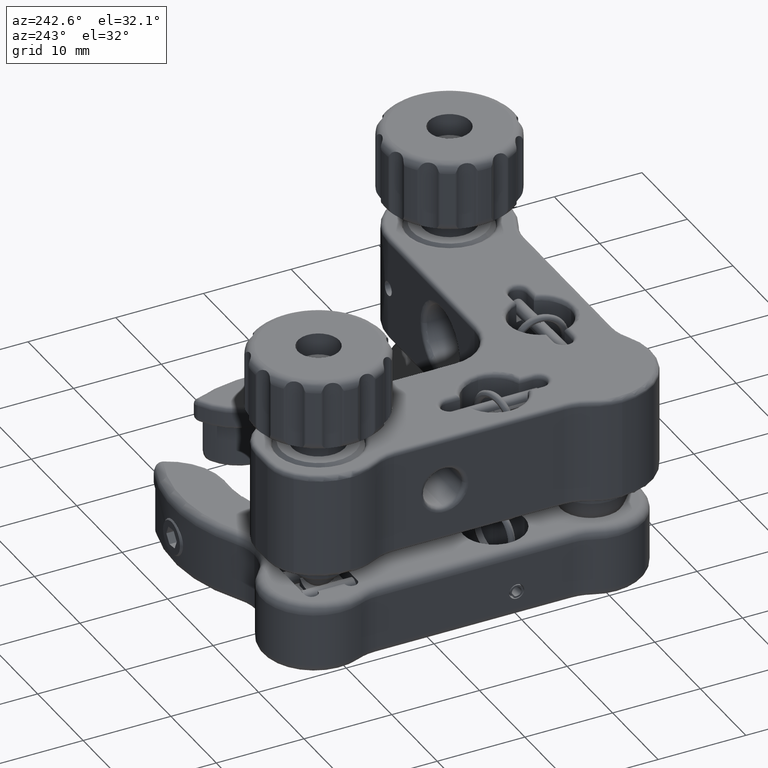
[diagram: clean part render]
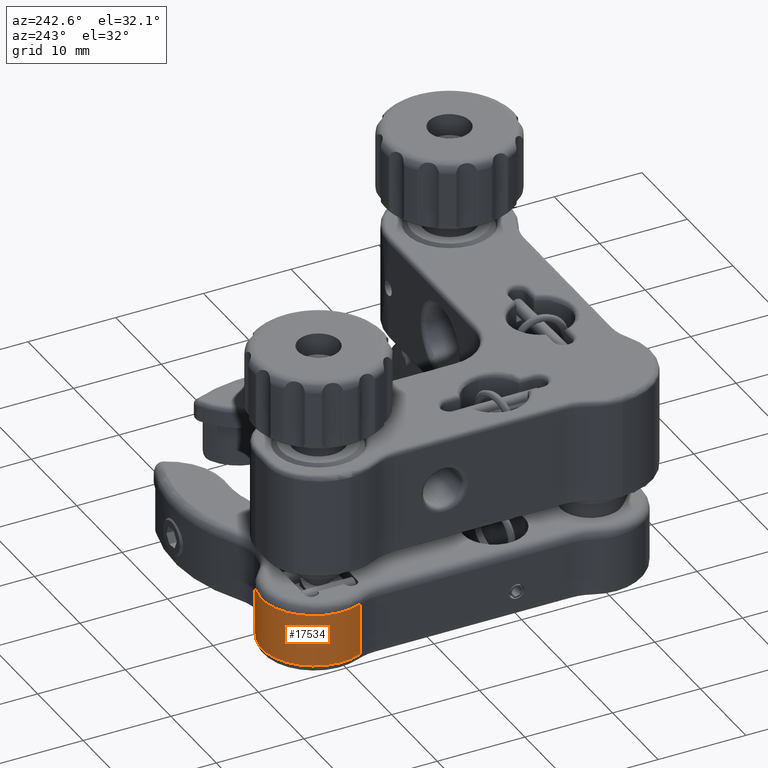
[diagram: same view with one face highlighted and labeled with its STEP entity id]
A machine part, auxiliary view. The second image highlights one B-rep face of the part: STEP entity #17534.
In plain terms, the highlighted cylindrical surface (partial cylindrical patch) has radius 6 mm, axis along (-0, 0, -1).
Its self-contained STEP definition (entity closure, byte-faithful):
#204 = ORIENTED_EDGE ( 'NONE', *, *, #1464, .T. ) ;
#413 = CARTESIAN_POINT ( 'NONE',  ( 24.18022454005432200, 31.49999999999998600, -9.999999999999998200 ) ) ;
#594 = DIRECTION ( 'NONE',  ( 0.0000000000000000000, -1.000000000000000000, -2.891205793294675900E-016 ) ) ;
#1308 = CARTESIAN_POINT ( 'NONE',  ( 18.72567908550886200, 29.00041325729680600, -9.999999999999998200 ) ) ;
#1464 = EDGE_CURVE ( 'NONE', #17185, #4886, #17468, .T. ) ;
#2385 = LINE ( 'NONE', #1308, #26307 ) ;
#2563 = DIRECTION ( 'NONE',  ( -1.734723475976805500E-015, -1.000000000000000000, 0.0000000000000000000 ) ) ;
#2572 = EDGE_CURVE ( 'NONE', #13015, #24645, #2385, .T. ) ;
#2737 = FACE_OUTER_BOUND ( 'NONE', #17291, .T. ) ;
#4647 = CIRCLE ( 'NONE', #15537, 6.000000000000005300 ) ;
#4886 = VERTEX_POINT ( 'NONE', #8671 ) ;
#8671 = CARTESIAN_POINT ( 'NONE',  ( 28.41920498718482300, 35.74629777204157900, -16.99999999999999600 ) ) ;
#8762 = DIRECTION ( 'NONE',  ( -2.644345997068941900E-016, 1.942890293094024400E-016, -1.000000000000000000 ) ) ;
#9696 = ORIENTED_EDGE ( 'NONE', *, *, #2572, .F. ) ;
#10428 = CIRCLE ( 'NONE', #20682, 6.000000000000005300 ) ;
#10629 = DIRECTION ( 'NONE',  ( -2.644345997068941900E-016, 1.942890293094024400E-016, -1.000000000000000000 ) ) ;
#10886 = ORIENTED_EDGE ( 'NONE', *, *, #15411, .T. ) ;
#11992 = VECTOR ( 'NONE', #16611, 1000.000000000000000 ) ;
#13015 = VERTEX_POINT ( 'NONE', #18981 ) ;
#14675 = DIRECTION ( 'NONE',  ( 0.0000000000000000000, -1.000000000000000000, -2.891205793294675900E-016 ) ) ;
#14794 = DIRECTION ( 'NONE',  ( 2.644345997068941900E-016, -1.942890293094024400E-016, 1.000000000000000000 ) ) ;
#15411 = EDGE_CURVE ( 'NONE', #4886, #24645, #10428, .T. ) ;
#15537 = AXIS2_PLACEMENT_3D ( 'NONE', #22823, #8762, #594 ) ;
#16048 = AXIS2_PLACEMENT_3D ( 'NONE', #413, #10629, #14675 ) ;
#16611 = DIRECTION ( 'NONE',  ( -2.644345997068941500E-016, 1.942890293094024400E-016, -1.000000000000000000 ) ) ;
#16964 = CARTESIAN_POINT ( 'NONE',  ( 24.18022454005432200, 31.49999999999998600, -16.99999999999999600 ) ) ;
#17185 = VERTEX_POINT ( 'NONE', #25819 ) ;
#17291 = EDGE_LOOP ( 'NONE', ( #204, #10886, #9696, #25677 ) ) ;
#17468 = LINE ( 'NONE', #17836, #11992 ) ;
#17488 = EDGE_CURVE ( 'NONE', #13015, #17185, #4647, .T. ) ;
#17534 = ADVANCED_FACE ( 'NONE', ( #2737 ), #23823, .T. ) ;
#17836 = CARTESIAN_POINT ( 'NONE',  ( 28.41920498718482300, 35.74629777204157900, -9.999999999999998200 ) ) ;
#18296 = CARTESIAN_POINT ( 'NONE',  ( 18.72567908550885800, 29.00041325729680600, -16.99999999999999600 ) ) ;
#18981 = CARTESIAN_POINT ( 'NONE',  ( 18.72567908550886200, 29.00041325729680600, -10.99999999999999800 ) ) ;
#20682 = AXIS2_PLACEMENT_3D ( 'NONE', #16964, #14794, #2563 ) ;
#21930 = DIRECTION ( 'NONE',  ( -2.644345997068941500E-016, 1.942890293094024400E-016, -1.000000000000000000 ) ) ;
#22823 = CARTESIAN_POINT ( 'NONE',  ( 24.18022454005432200, 31.49999999999998600, -11.00000000000000000 ) ) ;
#23823 = CYLINDRICAL_SURFACE ( 'NONE', #16048, 6.000000000000005300 ) ;
#24645 = VERTEX_POINT ( 'NONE', #18296 ) ;
#25677 = ORIENTED_EDGE ( 'NONE', *, *, #17488, .T. ) ;
#25819 = CARTESIAN_POINT ( 'NONE',  ( 28.41920498718482300, 35.74629777204157900, -11.00000000000000000 ) ) ;
#26307 = VECTOR ( 'NONE', #21930, 1000.000000000000000 ) ;